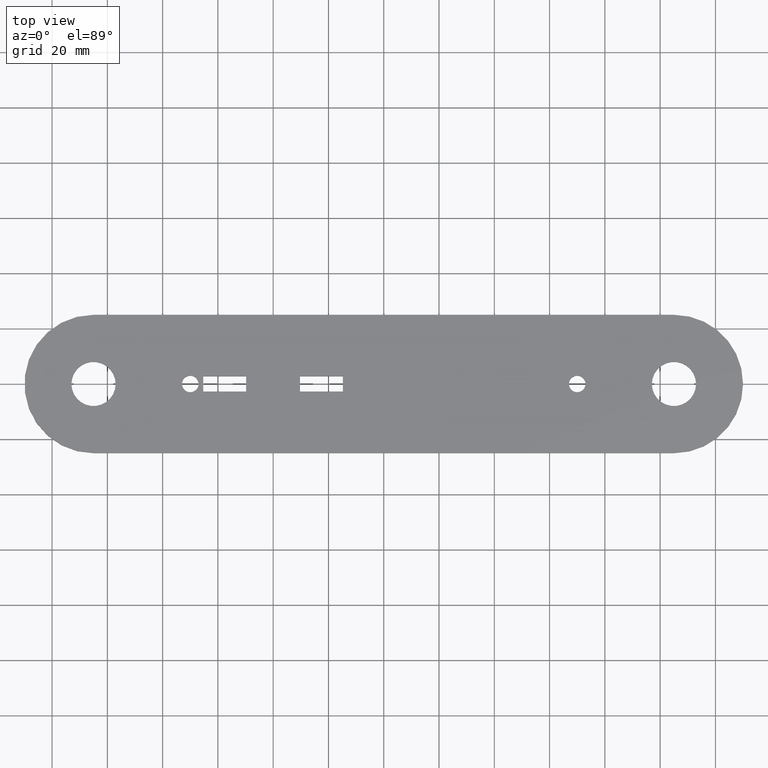
[diagram: clean part render]
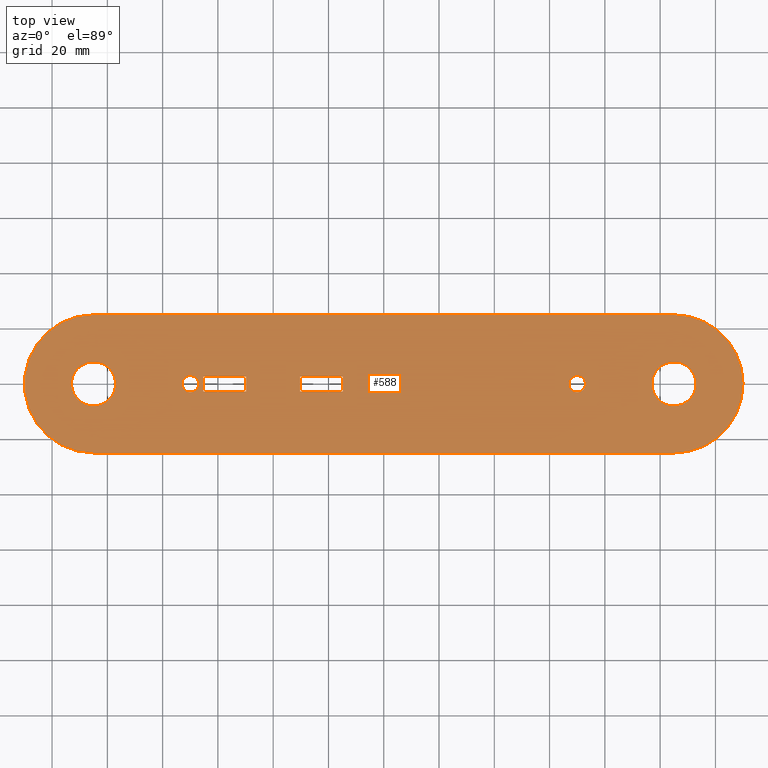
[diagram: same view with one face highlighted and labeled with its STEP entity id]
A machine part, top view. The second image highlights one B-rep face of the part: STEP entity #588.
In plain terms, the highlighted planar face has unit normal (0, 0, 1).
Its self-contained STEP definition (entity closure, byte-faithful):
#5 = ORIENTED_EDGE ( 'NONE', *, *, #736, .T. ) ;
#7 = CIRCLE ( 'NONE', #648, 3.000000000000002665 ) ;
#17 = DIRECTION ( 'NONE',  ( 1.000000000000000000, 0.000000000000000000, 0.000000000000000000 ) ) ;
#20 = DIRECTION ( 'NONE',  ( 0.000000000000000000, 0.000000000000000000, 1.000000000000000000 ) ) ;
#23 = EDGE_CURVE ( 'NONE', #406, #346, #163, .T. ) ;
#32 = CARTESIAN_POINT ( 'NONE',  ( -30.29999999999999361, -2.749999999999998668, 0.000000000000000000 ) ) ;
#33 = EDGE_CURVE ( 'NONE', #829, #69, #796, .T. ) ;
#35 = FACE_BOUND ( 'NONE', #754, .T. ) ;
#36 = AXIS2_PLACEMENT_3D ( 'NONE', #193, #779, #199 ) ;
#38 = AXIS2_PLACEMENT_3D ( 'NONE', #97, #20, #106 ) ;
#49 = EDGE_CURVE ( 'NONE', #595, #448, #433, .T. ) ;
#54 = DIRECTION ( 'NONE',  ( 0.000000000000000000, 0.000000000000000000, 1.000000000000000000 ) ) ;
#56 = CARTESIAN_POINT ( 'NONE',  ( 104.9999999999999858, 3.857637417314161584E-14, 0.000000000000000000 ) ) ;
#68 = CARTESIAN_POINT ( 'NONE',  ( -104.9999999999999858, -25.00000000000004263, 0.000000000000000000 ) ) ;
#69 = VERTEX_POINT ( 'NONE', #491 ) ;
#70 = VERTEX_POINT ( 'NONE', #752 ) ;
#84 = ORIENTED_EDGE ( 'NONE', *, *, #523, .T. ) ;
#91 = FACE_BOUND ( 'NONE', #668, .T. ) ;
#93 = VECTOR ( 'NONE', #666, 1000.000000000000000 ) ;
#97 = CARTESIAN_POINT ( 'NONE',  ( 69.99999999999998579, 0.000000000000000000, 0.000000000000000000 ) ) ;
#99 = EDGE_CURVE ( 'NONE', #158, #131, #730, .T. ) ;
#103 = CARTESIAN_POINT ( 'NONE',  ( -104.9999999999999858, 0.000000000000000000, 0.000000000000000000 ) ) ;
#104 = EDGE_CURVE ( 'NONE', #244, #515, #672, .T. ) ;
#106 = DIRECTION ( 'NONE',  ( 1.000000000000000000, 0.000000000000000000, 0.000000000000000000 ) ) ;
#110 = ORIENTED_EDGE ( 'NONE', *, *, #209, .F. ) ;
#113 = DIRECTION ( 'NONE',  ( -1.000000000000000000, -1.817329355785226926E-16, -0.000000000000000000 ) ) ;
#119 = CIRCLE ( 'NONE', #593, 8.000000000000007105 ) ;
#128 = DIRECTION ( 'NONE',  ( -0.000000000000000000, -1.000000000000000000, -0.000000000000000000 ) ) ;
#131 = VERTEX_POINT ( 'NONE', #355 ) ;
#133 = CARTESIAN_POINT ( 'NONE',  ( -65.29999999999999716, -2.749999999999998224, 0.000000000000000000 ) ) ;
#144 = EDGE_CURVE ( 'NONE', #696, #557, #819, .T. ) ;
#147 = CARTESIAN_POINT ( 'NONE',  ( 112.9999999999999858, 3.857637417314161584E-14, 0.000000000000000000 ) ) ;
#153 = CARTESIAN_POINT ( 'NONE',  ( -30.29999999999999361, 2.750000000000001332, 0.000000000000000000 ) ) ;
#155 = ORIENTED_EDGE ( 'NONE', *, *, #410, .F. ) ;
#158 = VERTEX_POINT ( 'NONE', #744 ) ;
#162 = FACE_OUTER_BOUND ( 'NONE', #812, .T. ) ;
#163 = CIRCLE ( 'NONE', #717, 3.000000000000002665 ) ;
#186 = DIRECTION ( 'NONE',  ( 0.000000000000000000, 0.000000000000000000, 1.000000000000000000 ) ) ;
#191 = CIRCLE ( 'NONE', #373, 8.000000000000007105 ) ;
#193 = CARTESIAN_POINT ( 'NONE',  ( -69.99999999999998579, 0.000000000000000000, 0.000000000000000000 ) ) ;
#196 = EDGE_CURVE ( 'NONE', #806, #392, #517, .T. ) ;
#199 = DIRECTION ( 'NONE',  ( 1.000000000000000000, 0.000000000000000000, 0.000000000000000000 ) ) ;
#204 = ORIENTED_EDGE ( 'NONE', *, *, #625, .T. ) ;
#206 = LINE ( 'NONE', #393, #551 ) ;
#208 = LINE ( 'NONE', #533, #241 ) ;
#209 = EDGE_CURVE ( 'NONE', #798, #841, #191, .T. ) ;
#210 = VECTOR ( 'NONE', #128, 1000.000000000000000 ) ;
#214 = CARTESIAN_POINT ( 'NONE',  ( -30.29999999999999361, -2.749999999999998668, 0.000000000000000000 ) ) ;
#220 = DIRECTION ( 'NONE',  ( 0.000000000000000000, 0.000000000000000000, 1.000000000000000000 ) ) ;
#223 = CARTESIAN_POINT ( 'NONE',  ( 104.9999999999999858, 3.857637417314161584E-14, 0.000000000000000000 ) ) ;
#234 = FACE_BOUND ( 'NONE', #276, .T. ) ;
#241 = VECTOR ( 'NONE', #473, 1000.000000000000000 ) ;
#244 = VERTEX_POINT ( 'NONE', #133 ) ;
#247 = LINE ( 'NONE', #837, #487 ) ;
#251 = EDGE_CURVE ( 'NONE', #443, #562, #822, .T. ) ;
#253 = AXIS2_PLACEMENT_3D ( 'NONE', #103, #349, #426 ) ;
#255 = EDGE_LOOP ( 'NONE', ( #428, #363, #721, #204 ) ) ;
#257 = DIRECTION ( 'NONE',  ( 1.000000000000000000, 0.000000000000000000, 0.000000000000000000 ) ) ;
#258 = DIRECTION ( 'NONE',  ( 1.000000000000000000, 0.000000000000000000, 0.000000000000000000 ) ) ;
#265 = LINE ( 'NONE', #153, #835 ) ;
#267 = VECTOR ( 'NONE', #777, 1000.000000000000000 ) ;
#276 = EDGE_LOOP ( 'NONE', ( #732, #387 ) ) ;
#282 = ORIENTED_EDGE ( 'NONE', *, *, #49, .T. ) ;
#295 = ORIENTED_EDGE ( 'NONE', *, *, #345, .T. ) ;
#297 = DIRECTION ( 'NONE',  ( 0.000000000000000000, 0.000000000000000000, 1.000000000000000000 ) ) ;
#299 = DIRECTION ( 'NONE',  ( 0.000000000000000000, 1.000000000000000000, 0.000000000000000000 ) ) ;
#301 = LINE ( 'NONE', #755, #93 ) ;
#306 = DIRECTION ( 'NONE',  ( 1.000000000000000000, 0.000000000000000000, 0.000000000000000000 ) ) ;
#315 = CARTESIAN_POINT ( 'NONE',  ( 104.9999999999999858, -25.00000000000000355, 0.000000000000000000 ) ) ;
#330 = CARTESIAN_POINT ( 'NONE',  ( 72.99999999999998579, 0.000000000000000000, 0.000000000000000000 ) ) ;
#331 = CARTESIAN_POINT ( 'NONE',  ( 96.99999999999997158, 3.955609161245950334E-14, 0.000000000000000000 ) ) ;
#333 = CIRCLE ( 'NONE', #809, 25.00000000000004974 ) ;
#335 = EDGE_CURVE ( 'NONE', #131, #158, #119, .T. ) ;
#337 = CARTESIAN_POINT ( 'NONE',  ( -49.79999999999999716, 2.750000000000001332, 0.000000000000000000 ) ) ;
#340 = CARTESIAN_POINT ( 'NONE',  ( -72.99999999999998579, 3.673940397442076138E-16, 0.000000000000000000 ) ) ;
#345 = EDGE_CURVE ( 'NONE', #675, #70, #333, .T. ) ;
#346 = VERTEX_POINT ( 'NONE', #439 ) ;
#348 = PLANE ( 'NONE',  #374 ) ;
#349 = DIRECTION ( 'NONE',  ( 0.000000000000000000, 0.000000000000000000, 1.000000000000000000 ) ) ;
#354 = FACE_BOUND ( 'NONE', #628, .T. ) ;
#355 = CARTESIAN_POINT ( 'NONE',  ( -112.9999999999999858, 9.797174393178845379E-16, 0.000000000000000000 ) ) ;
#361 = CIRCLE ( 'NONE', #797, 25.00000000000004974 ) ;
#362 = DIRECTION ( 'NONE',  ( 1.000000000000000000, 0.000000000000000000, 0.000000000000000000 ) ) ;
#363 = ORIENTED_EDGE ( 'NONE', *, *, #814, .T. ) ;
#373 = AXIS2_PLACEMENT_3D ( 'NONE', #570, #773, #257 ) ;
#374 = AXIS2_PLACEMENT_3D ( 'NONE', #684, #297, #555 ) ;
#387 = ORIENTED_EDGE ( 'NONE', *, *, #545, .F. ) ;
#389 = VECTOR ( 'NONE', #815, 1000.000000000000000 ) ;
#392 = VERTEX_POINT ( 'NONE', #466 ) ;
#393 = CARTESIAN_POINT ( 'NONE',  ( -65.29999999999999716, 2.750000000000000888, 0.000000000000000000 ) ) ;
#395 = DIRECTION ( 'NONE',  ( -1.000000000000000000, -0.000000000000000000, -0.000000000000000000 ) ) ;
#402 = EDGE_CURVE ( 'NONE', #557, #806, #265, .T. ) ;
#406 = VERTEX_POINT ( 'NONE', #330 ) ;
#410 = EDGE_CURVE ( 'NONE', #841, #798, #582, .T. ) ;
#419 = ORIENTED_EDGE ( 'NONE', *, *, #99, .F. ) ;
#426 = DIRECTION ( 'NONE',  ( 1.000000000000000000, 0.000000000000000000, 0.000000000000000000 ) ) ;
#427 = EDGE_CURVE ( 'NONE', #392, #696, #791, .T. ) ;
#428 = ORIENTED_EDGE ( 'NONE', *, *, #104, .T. ) ;
#432 = ORIENTED_EDGE ( 'NONE', *, *, #144, .T. ) ;
#433 = CIRCLE ( 'NONE', #743, 25.00000000000004974 ) ;
#439 = CARTESIAN_POINT ( 'NONE',  ( 66.99999999999997158, 3.673940397442076138E-16, 0.000000000000000000 ) ) ;
#443 = VERTEX_POINT ( 'NONE', #337 ) ;
#448 = VERTEX_POINT ( 'NONE', #68 ) ;
#466 = CARTESIAN_POINT ( 'NONE',  ( -14.80000000000000071, -2.749999999999998668, 0.000000000000000000 ) ) ;
#467 = VERTEX_POINT ( 'NONE', #723 ) ;
#473 = DIRECTION ( 'NONE',  ( 1.000000000000000000, 1.817329355785226926E-16, 0.000000000000000000 ) ) ;
#481 = DIRECTION ( 'NONE',  ( 1.000000000000000000, 0.000000000000000000, 0.000000000000000000 ) ) ;
#484 = DIRECTION ( 'NONE',  ( 0.000000000000000000, 0.000000000000000000, 1.000000000000000000 ) ) ;
#487 = VECTOR ( 'NONE', #113, 1000.000000000000000 ) ;
#491 = CARTESIAN_POINT ( 'NONE',  ( -66.99999999999997158, 0.000000000000000000, 0.000000000000000000 ) ) ;
#502 = EDGE_CURVE ( 'NONE', #448, #675, #208, .T. ) ;
#503 = ORIENTED_EDGE ( 'NONE', *, *, #196, .T. ) ;
#508 = CARTESIAN_POINT ( 'NONE',  ( -14.80000000000000071, -2.749999999999998668, 0.000000000000000000 ) ) ;
#509 = CARTESIAN_POINT ( 'NONE',  ( 69.99999999999998579, 0.000000000000000000, 0.000000000000000000 ) ) ;
#515 = VERTEX_POINT ( 'NONE', #658 ) ;
#517 = LINE ( 'NONE', #508, #267 ) ;
#519 = ORIENTED_EDGE ( 'NONE', *, *, #33, .F. ) ;
#523 = EDGE_CURVE ( 'NONE', #70, #467, #361, .T. ) ;
#528 = VECTOR ( 'NONE', #395, 1000.000000000000000 ) ;
#533 = CARTESIAN_POINT ( 'NONE',  ( -104.9999999999999858, -25.00000000000004263, 0.000000000000000000 ) ) ;
#539 = CARTESIAN_POINT ( 'NONE',  ( -30.29999999999999361, 2.750000000000001332, 0.000000000000000000 ) ) ;
#545 = EDGE_CURVE ( 'NONE', #346, #406, #825, .T. ) ;
#551 = VECTOR ( 'NONE', #652, 1000.000000000000000 ) ;
#552 = ORIENTED_EDGE ( 'NONE', *, *, #727, .F. ) ;
#555 = DIRECTION ( 'NONE',  ( 1.000000000000000000, 0.000000000000000000, -0.000000000000000000 ) ) ;
#557 = VERTEX_POINT ( 'NONE', #539 ) ;
#562 = VERTEX_POINT ( 'NONE', #808 ) ;
#570 = CARTESIAN_POINT ( 'NONE',  ( 104.9999999999999858, 3.857637417314161584E-14, 0.000000000000000000 ) ) ;
#573 = DIRECTION ( 'NONE',  ( 1.000000000000000000, 0.000000000000000000, 0.000000000000000000 ) ) ;
#577 = CARTESIAN_POINT ( 'NONE',  ( -104.9999999999999858, 0.000000000000000000, 0.000000000000000000 ) ) ;
#582 = CIRCLE ( 'NONE', #718, 8.000000000000007105 ) ;
#588 = ADVANCED_FACE ( 'NONE', ( #354, #234, #617, #614, #35, #91, #162 ), #348, .T. ) ;
#593 = AXIS2_PLACEMENT_3D ( 'NONE', #577, #186, #306 ) ;
#595 = VERTEX_POINT ( 'NONE', #621 ) ;
#596 = DIRECTION ( 'NONE',  ( 1.000000000000000000, 0.000000000000000000, 0.000000000000000000 ) ) ;
#614 = FACE_BOUND ( 'NONE', #724, .T. ) ;
#617 = FACE_BOUND ( 'NONE', #255, .T. ) ;
#621 = CARTESIAN_POINT ( 'NONE',  ( -104.9999999999999858, 25.00000000000004263, 0.000000000000000000 ) ) ;
#625 = EDGE_CURVE ( 'NONE', #562, #244, #301, .T. ) ;
#628 = EDGE_LOOP ( 'NONE', ( #552, #519 ) ) ;
#632 = VECTOR ( 'NONE', #299, 1000.000000000000000 ) ;
#638 = CARTESIAN_POINT ( 'NONE',  ( -30.29999999999999361, -2.749999999999998668, 0.000000000000000000 ) ) ;
#648 = AXIS2_PLACEMENT_3D ( 'NONE', #694, #707, #703 ) ;
#650 = ORIENTED_EDGE ( 'NONE', *, *, #427, .T. ) ;
#652 = DIRECTION ( 'NONE',  ( 1.000000000000000000, 2.797941090285172713E-17, 0.000000000000000000 ) ) ;
#658 = CARTESIAN_POINT ( 'NONE',  ( -65.29999999999999716, 2.750000000000000888, 0.000000000000000000 ) ) ;
#666 = DIRECTION ( 'NONE',  ( -1.000000000000000000, 2.797941090285172713E-17, -0.000000000000000000 ) ) ;
#668 = EDGE_LOOP ( 'NONE', ( #419, #844 ) ) ;
#672 = LINE ( 'NONE', #691, #632 ) ;
#675 = VERTEX_POINT ( 'NONE', #315 ) ;
#679 = ORIENTED_EDGE ( 'NONE', *, *, #402, .T. ) ;
#684 = CARTESIAN_POINT ( 'NONE',  ( -104.9999999999999858, 0.000000000000000000, 0.000000000000000000 ) ) ;
#691 = CARTESIAN_POINT ( 'NONE',  ( -65.29999999999999716, -2.749999999999998224, 0.000000000000000000 ) ) ;
#694 = CARTESIAN_POINT ( 'NONE',  ( -69.99999999999998579, 0.000000000000000000, 0.000000000000000000 ) ) ;
#696 = VERTEX_POINT ( 'NONE', #638 ) ;
#703 = DIRECTION ( 'NONE',  ( 1.000000000000000000, 0.000000000000000000, 0.000000000000000000 ) ) ;
#707 = DIRECTION ( 'NONE',  ( 0.000000000000000000, 0.000000000000000000, 1.000000000000000000 ) ) ;
#717 = AXIS2_PLACEMENT_3D ( 'NONE', #509, #771, #258 ) ;
#718 = AXIS2_PLACEMENT_3D ( 'NONE', #787, #726, #596 ) ;
#720 = ORIENTED_EDGE ( 'NONE', *, *, #502, .T. ) ;
#721 = ORIENTED_EDGE ( 'NONE', *, *, #251, .T. ) ;
#722 = CARTESIAN_POINT ( 'NONE',  ( -14.80000000000000782, 2.750000000000001332, 0.000000000000000000 ) ) ;
#723 = CARTESIAN_POINT ( 'NONE',  ( 104.9999999999999858, 25.00000000000008171, 0.000000000000000000 ) ) ;
#724 = EDGE_LOOP ( 'NONE', ( #432, #679, #503, #650 ) ) ;
#726 = DIRECTION ( 'NONE',  ( 0.000000000000000000, 0.000000000000000000, 1.000000000000000000 ) ) ;
#727 = EDGE_CURVE ( 'NONE', #69, #829, #7, .T. ) ;
#730 = CIRCLE ( 'NONE', #253, 8.000000000000007105 ) ;
#732 = ORIENTED_EDGE ( 'NONE', *, *, #23, .F. ) ;
#736 = EDGE_CURVE ( 'NONE', #467, #595, #247, .T. ) ;
#743 = AXIS2_PLACEMENT_3D ( 'NONE', #749, #220, #362 ) ;
#744 = CARTESIAN_POINT ( 'NONE',  ( -96.99999999999997158, 0.000000000000000000, 0.000000000000000000 ) ) ;
#749 = CARTESIAN_POINT ( 'NONE',  ( -104.9999999999999858, 0.000000000000000000, 0.000000000000000000 ) ) ;
#752 = CARTESIAN_POINT ( 'NONE',  ( 130.0000000000000284, 3.857637417314161584E-14, 0.000000000000000000 ) ) ;
#754 = EDGE_LOOP ( 'NONE', ( #155, #110 ) ) ;
#755 = CARTESIAN_POINT ( 'NONE',  ( -65.29999999999999716, -2.749999999999998224, 0.000000000000000000 ) ) ;
#771 = DIRECTION ( 'NONE',  ( 0.000000000000000000, 0.000000000000000000, 1.000000000000000000 ) ) ;
#773 = DIRECTION ( 'NONE',  ( 0.000000000000000000, 0.000000000000000000, 1.000000000000000000 ) ) ;
#777 = DIRECTION ( 'NONE',  ( -0.000000000000000000, -1.000000000000000000, -0.000000000000000000 ) ) ;
#779 = DIRECTION ( 'NONE',  ( 0.000000000000000000, 0.000000000000000000, 1.000000000000000000 ) ) ;
#787 = CARTESIAN_POINT ( 'NONE',  ( 104.9999999999999858, 3.857637417314161584E-14, 0.000000000000000000 ) ) ;
#791 = LINE ( 'NONE', #214, #528 ) ;
#796 = CIRCLE ( 'NONE', #36, 3.000000000000002665 ) ;
#797 = AXIS2_PLACEMENT_3D ( 'NONE', #223, #484, #481 ) ;
#798 = VERTEX_POINT ( 'NONE', #331 ) ;
#806 = VERTEX_POINT ( 'NONE', #722 ) ;
#808 = CARTESIAN_POINT ( 'NONE',  ( -49.79999999999999716, -2.749999999999998668, 0.000000000000000000 ) ) ;
#809 = AXIS2_PLACEMENT_3D ( 'NONE', #56, #54, #573 ) ;
#812 = EDGE_LOOP ( 'NONE', ( #282, #720, #295, #84, #5 ) ) ;
#814 = EDGE_CURVE ( 'NONE', #515, #443, #206, .T. ) ;
#815 = DIRECTION ( 'NONE',  ( 0.000000000000000000, 1.000000000000000000, 0.000000000000000000 ) ) ;
#819 = LINE ( 'NONE', #32, #389 ) ;
#822 = LINE ( 'NONE', #839, #210 ) ;
#825 = CIRCLE ( 'NONE', #38, 3.000000000000002665 ) ;
#829 = VERTEX_POINT ( 'NONE', #340 ) ;
#835 = VECTOR ( 'NONE', #17, 1000.000000000000000 ) ;
#837 = CARTESIAN_POINT ( 'NONE',  ( -104.9999999999999858, 25.00000000000004263, 0.000000000000000000 ) ) ;
#839 = CARTESIAN_POINT ( 'NONE',  ( -49.79999999999999716, -2.749999999999998668, 0.000000000000000000 ) ) ;
#841 = VERTEX_POINT ( 'NONE', #147 ) ;
#844 = ORIENTED_EDGE ( 'NONE', *, *, #335, .F. ) ;